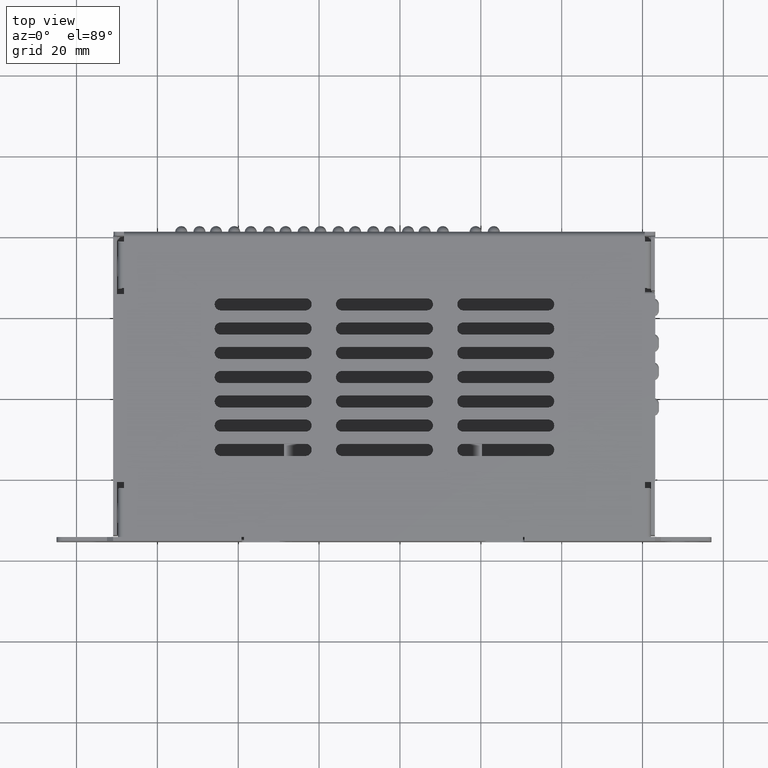
[diagram: clean part render]
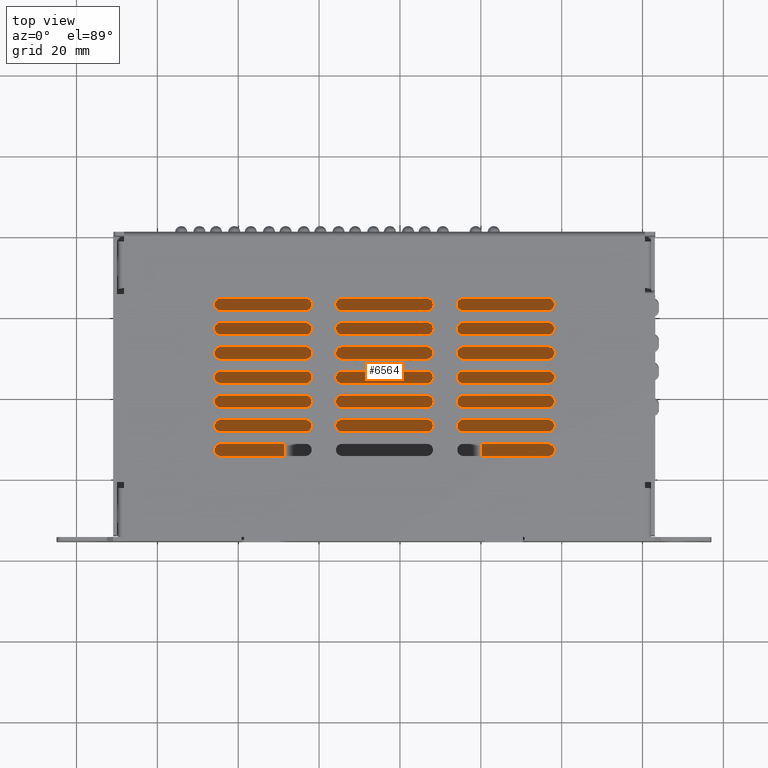
[diagram: same view with one face highlighted and labeled with its STEP entity id]
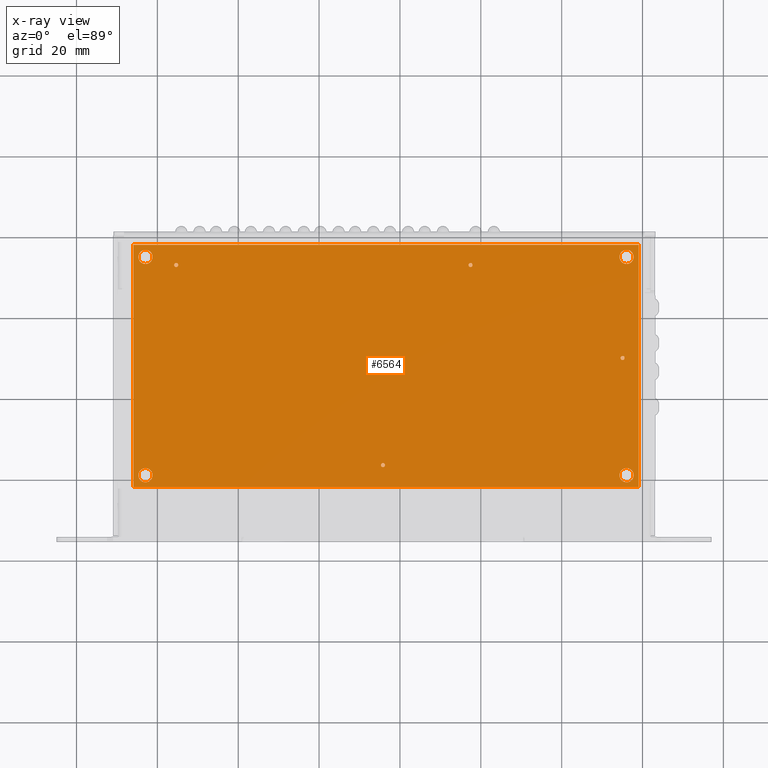
[diagram: x-ray of the same camera — body ghosted, the highlighted face saturated]
A machine part, top view. The second image highlights one B-rep face of the part: STEP entity #6564.
The next image is the same camera in x-ray: the body ghosted, the highlighted face saturated — about 0% of this face is hidden behind the body in this view.
In plain terms, the highlighted planar face has unit normal (0, 0, -1).
Its self-contained STEP definition (entity closure, byte-faithful):
#11 = VERTEX_POINT ( 'NONE', #15384 ) ;
#79 = VERTEX_POINT ( 'NONE', #15490 ) ;
#155 = EDGE_CURVE ( 'NONE', #11, #79, #15627, .T. ) ;
#6383 = EDGE_CURVE ( 'NONE', #6402, #6385, #16815, .T. ) ;
#6385 = VERTEX_POINT ( 'NONE', #16818 ) ;
#6390 = VERTEX_POINT ( 'NONE', #16852 ) ;
#6392 = VERTEX_POINT ( 'NONE', #16867 ) ;
#6393 = VERTEX_POINT ( 'NONE', #16850 ) ;
#6395 = VERTEX_POINT ( 'NONE', #16858 ) ;
#6402 = VERTEX_POINT ( 'NONE', #16845 ) ;
#6405 = EDGE_CURVE ( 'NONE', #6392, #6390, #16886, .T. ) ;
#6409 = VERTEX_POINT ( 'NONE', #16878 ) ;
#6422 = VERTEX_POINT ( 'NONE', #16922 ) ;
#6427 = VERTEX_POINT ( 'NONE', #16910 ) ;
#6433 = EDGE_CURVE ( 'NONE', #6435, #6395, #16949, .T. ) ;
#6435 = VERTEX_POINT ( 'NONE', #16943 ) ;
#6437 = EDGE_CURVE ( 'NONE', #6443, #6562, #16903, .T. ) ;
#6443 = VERTEX_POINT ( 'NONE', #16696 ) ;
#6445 = VERTEX_POINT ( 'NONE', #16247 ) ;
#6452 = VERTEX_POINT ( 'NONE', #16972 ) ;
#6461 = EDGE_CURVE ( 'NONE', #6427, #6393, #16962, .T. ) ;
#6464 = EDGE_CURVE ( 'NONE', #6385, #6402, #16953, .T. ) ;
#6465 = EDGE_LOOP ( 'NONE', ( #6473, #6515 ) ) ;
#6467 = EDGE_CURVE ( 'NONE', #6562, #6443, #16998, .T. ) ;
#6468 = ORIENTED_EDGE ( 'NONE', *, *, #6464, .F. ) ;
#6469 = EDGE_LOOP ( 'NONE', ( #6475, #6474, #6478, #6470 ) ) ;
#6470 = ORIENTED_EDGE ( 'NONE', *, *, #6531, .T. ) ;
#6472 = VERTEX_POINT ( 'NONE', #16986 ) ;
#6473 = ORIENTED_EDGE ( 'NONE', *, *, #6467, .F. ) ;
#6474 = ORIENTED_EDGE ( 'NONE', *, *, #6598, .T. ) ;
#6475 = ORIENTED_EDGE ( 'NONE', *, *, #6528, .T. ) ;
#6478 = ORIENTED_EDGE ( 'NONE', *, *, #6554, .T. ) ;
#6493 = EDGE_CURVE ( 'NONE', #6445, #6422, #17010, .T. ) ;
#6497 = EDGE_CURVE ( 'NONE', #6409, #6452, #17070, .T. ) ;
#6498 = ORIENTED_EDGE ( 'NONE', *, *, #6502, .F. ) ;
#6499 = ORIENTED_EDGE ( 'NONE', *, *, #155, .F. ) ;
#6500 = ORIENTED_EDGE ( 'NONE', *, *, #6558, .F. ) ;
#6501 = ORIENTED_EDGE ( 'NONE', *, *, #6510, .F. ) ;
#6502 = EDGE_CURVE ( 'NONE', #6395, #6435, #17051, .T. ) ;
#6504 = EDGE_LOOP ( 'NONE', ( #6541, #6538 ) ) ;
#6505 = EDGE_LOOP ( 'NONE', ( #6501, #6537 ) ) ;
#6506 = ORIENTED_EDGE ( 'NONE', *, *, #6461, .F. ) ;
#6507 = ORIENTED_EDGE ( 'NONE', *, *, #6433, .F. ) ;
#6509 = EDGE_LOOP ( 'NONE', ( #6500, #6499 ) ) ;
#6510 = EDGE_CURVE ( 'NONE', #6422, #6445, #17045, .T. ) ;
#6512 = ORIENTED_EDGE ( 'NONE', *, *, #6405, .F. ) ;
#6513 = ORIENTED_EDGE ( 'NONE', *, *, #6540, .F. ) ;
#6514 = EDGE_LOOP ( 'NONE', ( #6468, #6543 ) ) ;
#6515 = ORIENTED_EDGE ( 'NONE', *, *, #6437, .F. ) ;
#6516 = EDGE_LOOP ( 'NONE', ( #6542, #6512 ) ) ;
#6528 = EDGE_CURVE ( 'NONE', #6472, #6529, #17102, .T. ) ;
#6529 = VERTEX_POINT ( 'NONE', #17081 ) ;
#6531 = EDGE_CURVE ( 'NONE', #6555, #6472, #17090, .T. ) ;
#6532 = EDGE_LOOP ( 'NONE', ( #6498, #6507 ) ) ;
#6537 = ORIENTED_EDGE ( 'NONE', *, *, #6493, .F. ) ;
#6538 = ORIENTED_EDGE ( 'NONE', *, *, #6497, .F. ) ;
#6539 = EDGE_CURVE ( 'NONE', #6452, #6409, #17075, .T. ) ;
#6540 = EDGE_CURVE ( 'NONE', #6393, #6427, #17125, .T. ) ;
#6541 = ORIENTED_EDGE ( 'NONE', *, *, #6539, .F. ) ;
#6542 = ORIENTED_EDGE ( 'NONE', *, *, #6545, .F. ) ;
#6543 = ORIENTED_EDGE ( 'NONE', *, *, #6383, .F. ) ;
#6544 = EDGE_LOOP ( 'NONE', ( #6513, #6506 ) ) ;
#6545 = EDGE_CURVE ( 'NONE', #6390, #6392, #17116, .T. ) ;
#6554 = EDGE_CURVE ( 'NONE', #6595, #6555, #17106, .T. ) ;
#6555 = VERTEX_POINT ( 'NONE', #17156 ) ;
#6558 = EDGE_CURVE ( 'NONE', #79, #11, #17105, .T. ) ;
#6562 = VERTEX_POINT ( 'NONE', #17155 ) ;
#6564 = ADVANCED_FACE ( 'NONE', ( #17193, #17138, #17137, #17161, #17131, #17192, #17191, #17190, #17135 ), #17130, .F. ) ;
#6595 = VERTEX_POINT ( 'NONE', #17198 ) ;
#6598 = EDGE_CURVE ( 'NONE', #6529, #6595, #17217, .T. ) ;
#15384 = CARTESIAN_POINT ( 'NONE',  ( 82.90000000000000600, 55.00000000000000000, 1.600000000000000100 ) ) ;
#15490 = CARTESIAN_POINT ( 'NONE',  ( 83.90000000000000600, 55.00000000000000000, 1.600000000000000100 ) ) ;
#15624 = DIRECTION ( 'NONE',  ( 1.000000000000000000, 0.0000000000000000000, 0.0000000000000000000 ) ) ;
#15625 = DIRECTION ( 'NONE',  ( 0.0000000000000000000, 0.0000000000000000000, 1.000000000000000000 ) ) ;
#15626 = CARTESIAN_POINT ( 'NONE',  ( 83.40000000000000600, 55.00000000000000000, 1.600000000000000100 ) ) ;
#15627 = CIRCLE ( 'NONE', #15639, 0.5000000000000004400 ) ;
#15639 = AXIS2_PLACEMENT_3D ( 'NONE', #15626, #15625, #15624 ) ;
#16247 = CARTESIAN_POINT ( 'NONE',  ( 61.25000000000000000, 5.500000000000000000, 1.600000000000000100 ) ) ;
#16696 = CARTESIAN_POINT ( 'NONE',  ( 1.249999999999999600, 56.99999999999999300, 1.600000000000000100 ) ) ;
#16781 = AXIS2_PLACEMENT_3D ( 'NONE', #16814, #16813, #16812 ) ;
#16812 = DIRECTION ( 'NONE',  ( 1.000000000000000000, 0.0000000000000000000, 0.0000000000000000000 ) ) ;
#16813 = DIRECTION ( 'NONE',  ( 0.0000000000000000000, 0.0000000000000000000, 1.000000000000000000 ) ) ;
#16814 = CARTESIAN_POINT ( 'NONE',  ( 122.0000000000000000, 56.99999999999999300, 1.600000000000000100 ) ) ;
#16815 = CIRCLE ( 'NONE', #16781, 1.750000000000001600 ) ;
#16818 = CARTESIAN_POINT ( 'NONE',  ( 123.7500000000000000, 56.99999999999999300, 1.600000000000000100 ) ) ;
#16845 = CARTESIAN_POINT ( 'NONE',  ( 120.2500000000000000, 56.99999999999999300, 1.600000000000000100 ) ) ;
#16850 = CARTESIAN_POINT ( 'NONE',  ( 4.750000000000000000, 3.000000000000000000, 1.600000000000000100 ) ) ;
#16852 = CARTESIAN_POINT ( 'NONE',  ( 123.7500000000000000, 3.000000000000000000, 1.600000000000000100 ) ) ;
#16858 = CARTESIAN_POINT ( 'NONE',  ( 11.09999999999999800, 55.00000000000000000, 1.600000000000000100 ) ) ;
#16867 = CARTESIAN_POINT ( 'NONE',  ( 120.2500000000000000, 3.000000000000000000, 1.600000000000000100 ) ) ;
#16878 = CARTESIAN_POINT ( 'NONE',  ( 120.5000000000000100, 32.00000000000000000, 1.600000000000000100 ) ) ;
#16882 = DIRECTION ( 'NONE',  ( 1.000000000000000000, 0.0000000000000000000, 0.0000000000000000000 ) ) ;
#16883 = DIRECTION ( 'NONE',  ( 0.0000000000000000000, 0.0000000000000000000, 1.000000000000000000 ) ) ;
#16884 = CARTESIAN_POINT ( 'NONE',  ( 122.0000000000000000, 3.000000000000000000, 1.600000000000000100 ) ) ;
#16885 = AXIS2_PLACEMENT_3D ( 'NONE', #16884, #16883, #16882 ) ;
#16886 = CIRCLE ( 'NONE', #16885, 1.750000000000001600 ) ;
#16903 = CIRCLE ( 'NONE', #16931, 1.750000000000000700 ) ;
#16904 = AXIS2_PLACEMENT_3D ( 'NONE', #16948, #16947, #16946 ) ;
#16910 = CARTESIAN_POINT ( 'NONE',  ( 1.250000000000000000, 3.000000000000000000, 1.600000000000000100 ) ) ;
#16922 = CARTESIAN_POINT ( 'NONE',  ( 62.25000000000000000, 5.500000000000000000, 1.600000000000000100 ) ) ;
#16928 = DIRECTION ( 'NONE',  ( 1.000000000000000000, 0.0000000000000000000, 0.0000000000000000000 ) ) ;
#16929 = DIRECTION ( 'NONE',  ( 0.0000000000000000000, 0.0000000000000000000, 1.000000000000000000 ) ) ;
#16930 = CARTESIAN_POINT ( 'NONE',  ( 3.000000000000000000, 56.99999999999999300, 1.600000000000000100 ) ) ;
#16931 = AXIS2_PLACEMENT_3D ( 'NONE', #16930, #16929, #16928 ) ;
#16943 = CARTESIAN_POINT ( 'NONE',  ( 10.09999999999999800, 55.00000000000000000, 1.600000000000000100 ) ) ;
#16946 = DIRECTION ( 'NONE',  ( 1.000000000000000000, 0.0000000000000000000, 0.0000000000000000000 ) ) ;
#16947 = DIRECTION ( 'NONE',  ( 0.0000000000000000000, 0.0000000000000000000, 1.000000000000000000 ) ) ;
#16948 = CARTESIAN_POINT ( 'NONE',  ( 10.59999999999999800, 55.00000000000000000, 1.600000000000000100 ) ) ;
#16949 = CIRCLE ( 'NONE', #16904, 0.5000000000000004400 ) ;
#16952 = CARTESIAN_POINT ( 'NONE',  ( 122.0000000000000000, 56.99999999999999300, 1.600000000000000100 ) ) ;
#16953 = CIRCLE ( 'NONE', #16963, 1.750000000000001600 ) ;
#16956 = AXIS2_PLACEMENT_3D ( 'NONE', #17005, #17004, #17003 ) ;
#16962 = CIRCLE ( 'NONE', #16956, 1.749999999999999800 ) ;
#16963 = AXIS2_PLACEMENT_3D ( 'NONE', #16952, #16997, #16996 ) ;
#16972 = CARTESIAN_POINT ( 'NONE',  ( 121.5000000000000100, 32.00000000000000000, 1.600000000000000100 ) ) ;
#16986 = CARTESIAN_POINT ( 'NONE',  ( 0.0000000000000000000, 60.00000000000000000, 1.600000000000000100 ) ) ;
#16988 = DIRECTION ( 'NONE',  ( 1.000000000000000000, 0.0000000000000000000, 0.0000000000000000000 ) ) ;
#16989 = DIRECTION ( 'NONE',  ( 0.0000000000000000000, 0.0000000000000000000, 1.000000000000000000 ) ) ;
#16990 = CARTESIAN_POINT ( 'NONE',  ( 3.000000000000000000, 56.99999999999999300, 1.600000000000000100 ) ) ;
#16991 = AXIS2_PLACEMENT_3D ( 'NONE', #16990, #16989, #16988 ) ;
#16996 = DIRECTION ( 'NONE',  ( 1.000000000000000000, 0.0000000000000000000, 0.0000000000000000000 ) ) ;
#16997 = DIRECTION ( 'NONE',  ( 0.0000000000000000000, 0.0000000000000000000, 1.000000000000000000 ) ) ;
#16998 = CIRCLE ( 'NONE', #16991, 1.750000000000000700 ) ;
#17003 = DIRECTION ( 'NONE',  ( 1.000000000000000000, 0.0000000000000000000, 0.0000000000000000000 ) ) ;
#17004 = DIRECTION ( 'NONE',  ( 0.0000000000000000000, 0.0000000000000000000, 1.000000000000000000 ) ) ;
#17005 = CARTESIAN_POINT ( 'NONE',  ( 3.000000000000000000, 3.000000000000000000, 1.600000000000000100 ) ) ;
#17010 = CIRCLE ( 'NONE', #17022, 0.5000000000000004400 ) ;
#17022 = AXIS2_PLACEMENT_3D ( 'NONE', #17068, #17067, #17066 ) ;
#17036 = AXIS2_PLACEMENT_3D ( 'NONE', #17055, #17054, #17053 ) ;
#17040 = DIRECTION ( 'NONE',  ( 0.0000000000000000000, 0.0000000000000000000, 1.000000000000000000 ) ) ;
#17041 = CARTESIAN_POINT ( 'NONE',  ( 61.75000000000000000, 5.500000000000000000, 1.600000000000000100 ) ) ;
#17042 = AXIS2_PLACEMENT_3D ( 'NONE', #17041, #17040, #17103 ) ;
#17045 = CIRCLE ( 'NONE', #17042, 0.5000000000000004400 ) ;
#17047 = DIRECTION ( 'NONE',  ( 1.000000000000000000, 0.0000000000000000000, 0.0000000000000000000 ) ) ;
#17048 = DIRECTION ( 'NONE',  ( 0.0000000000000000000, 0.0000000000000000000, 1.000000000000000000 ) ) ;
#17049 = CARTESIAN_POINT ( 'NONE',  ( 10.59999999999999800, 55.00000000000000000, 1.600000000000000100 ) ) ;
#17050 = AXIS2_PLACEMENT_3D ( 'NONE', #17049, #17048, #17047 ) ;
#17051 = CIRCLE ( 'NONE', #17050, 0.5000000000000004400 ) ;
#17053 = DIRECTION ( 'NONE',  ( 1.000000000000000000, 0.0000000000000000000, 0.0000000000000000000 ) ) ;
#17054 = DIRECTION ( 'NONE',  ( 0.0000000000000000000, 0.0000000000000000000, 1.000000000000000000 ) ) ;
#17055 = CARTESIAN_POINT ( 'NONE',  ( 121.0000000000000100, 32.00000000000000000, 1.600000000000000100 ) ) ;
#17066 = DIRECTION ( 'NONE',  ( 1.000000000000000000, 0.0000000000000000000, 0.0000000000000000000 ) ) ;
#17067 = DIRECTION ( 'NONE',  ( 0.0000000000000000000, 0.0000000000000000000, 1.000000000000000000 ) ) ;
#17068 = CARTESIAN_POINT ( 'NONE',  ( 61.75000000000000000, 5.500000000000000000, 1.600000000000000100 ) ) ;
#17070 = CIRCLE ( 'NONE', #17036, 0.5000000000000004400 ) ;
#17071 = CARTESIAN_POINT ( 'NONE',  ( 3.000000000000000000, 3.000000000000000000, 1.600000000000000100 ) ) ;
#17072 = DIRECTION ( 'NONE',  ( -1.000000000000000000, -0.0000000000000000000, -0.0000000000000000000 ) ) ;
#17073 = VECTOR ( 'NONE', #17072, 1000.000000000000000 ) ;
#17074 = CARTESIAN_POINT ( 'NONE',  ( 0.0000000000000000000, 60.00000000000000000, 1.600000000000000100 ) ) ;
#17075 = CIRCLE ( 'NONE', #17123, 0.5000000000000004400 ) ;
#17077 = DIRECTION ( 'NONE',  ( -0.0000000000000000000, -1.000000000000000000, -0.0000000000000000000 ) ) ;
#17078 = VECTOR ( 'NONE', #17077, 1000.000000000000000 ) ;
#17079 = CARTESIAN_POINT ( 'NONE',  ( 0.0000000000000000000, 0.0000000000000000000, 1.600000000000000100 ) ) ;
#17081 = CARTESIAN_POINT ( 'NONE',  ( 0.0000000000000000000, 0.0000000000000000000, 1.600000000000000100 ) ) ;
#17090 = LINE ( 'NONE', #17074, #17073 ) ;
#17102 = LINE ( 'NONE', #17079, #17078 ) ;
#17103 = DIRECTION ( 'NONE',  ( 1.000000000000000000, 0.0000000000000000000, 0.0000000000000000000 ) ) ;
#17105 = CIRCLE ( 'NONE', #17151, 0.5000000000000004400 ) ;
#17106 = LINE ( 'NONE', #17154, #17153 ) ;
#17112 = DIRECTION ( 'NONE',  ( 1.000000000000000000, 0.0000000000000000000, 0.0000000000000000000 ) ) ;
#17113 = DIRECTION ( 'NONE',  ( 0.0000000000000000000, 0.0000000000000000000, 1.000000000000000000 ) ) ;
#17114 = CARTESIAN_POINT ( 'NONE',  ( 122.0000000000000000, 3.000000000000000000, 1.600000000000000100 ) ) ;
#17116 = CIRCLE ( 'NONE', #17124, 1.750000000000001600 ) ;
#17118 = DIRECTION ( 'NONE',  ( 1.000000000000000000, 0.0000000000000000000, 0.0000000000000000000 ) ) ;
#17119 = DIRECTION ( 'NONE',  ( 0.0000000000000000000, 0.0000000000000000000, 1.000000000000000000 ) ) ;
#17120 = DIRECTION ( 'NONE',  ( 1.000000000000000000, 0.0000000000000000000, 0.0000000000000000000 ) ) ;
#17121 = DIRECTION ( 'NONE',  ( 0.0000000000000000000, 0.0000000000000000000, 1.000000000000000000 ) ) ;
#17122 = CARTESIAN_POINT ( 'NONE',  ( 121.0000000000000100, 32.00000000000000000, 1.600000000000000100 ) ) ;
#17123 = AXIS2_PLACEMENT_3D ( 'NONE', #17122, #17121, #17120 ) ;
#17124 = AXIS2_PLACEMENT_3D ( 'NONE', #17114, #17113, #17112 ) ;
#17125 = CIRCLE ( 'NONE', #17127, 1.749999999999999800 ) ;
#17127 = AXIS2_PLACEMENT_3D ( 'NONE', #17071, #17119, #17118 ) ;
#17130 = PLANE ( 'NONE',  #17132 ) ;
#17131 = FACE_BOUND ( 'NONE', #6544, .T. ) ;
#17132 = AXIS2_PLACEMENT_3D ( 'NONE', #17136, #17185, #17184 ) ;
#17135 = FACE_OUTER_BOUND ( 'NONE', #6469, .T. ) ;
#17136 = CARTESIAN_POINT ( 'NONE',  ( 0.0000000000000000000, 0.0000000000000000000, 1.600000000000000100 ) ) ;
#17137 = FACE_BOUND ( 'NONE', #6505, .T. ) ;
#17138 = FACE_BOUND ( 'NONE', #6532, .T. ) ;
#17139 = DIRECTION ( 'NONE',  ( 1.000000000000000000, 0.0000000000000000000, 0.0000000000000000000 ) ) ;
#17140 = DIRECTION ( 'NONE',  ( 0.0000000000000000000, 0.0000000000000000000, 1.000000000000000000 ) ) ;
#17141 = CARTESIAN_POINT ( 'NONE',  ( 83.40000000000000600, 55.00000000000000000, 1.600000000000000100 ) ) ;
#17151 = AXIS2_PLACEMENT_3D ( 'NONE', #17141, #17140, #17139 ) ;
#17152 = DIRECTION ( 'NONE',  ( 0.0000000000000000000, 1.000000000000000000, 0.0000000000000000000 ) ) ;
#17153 = VECTOR ( 'NONE', #17152, 1000.000000000000000 ) ;
#17154 = CARTESIAN_POINT ( 'NONE',  ( 125.0000000000000000, 0.0000000000000000000, 1.600000000000000100 ) ) ;
#17155 = CARTESIAN_POINT ( 'NONE',  ( 4.750000000000000900, 56.99999999999999300, 1.600000000000000100 ) ) ;
#17156 = CARTESIAN_POINT ( 'NONE',  ( 125.0000000000000000, 60.00000000000000000, 1.600000000000000100 ) ) ;
#17161 = FACE_BOUND ( 'NONE', #6504, .T. ) ;
#17184 = DIRECTION ( 'NONE',  ( -1.000000000000000000, 0.0000000000000000000, -0.0000000000000000000 ) ) ;
#17185 = DIRECTION ( 'NONE',  ( 0.0000000000000000000, 0.0000000000000000000, -1.000000000000000000 ) ) ;
#17190 = FACE_BOUND ( 'NONE', #6465, .T. ) ;
#17191 = FACE_BOUND ( 'NONE', #6514, .T. ) ;
#17192 = FACE_BOUND ( 'NONE', #6516, .T. ) ;
#17193 = FACE_BOUND ( 'NONE', #6509, .T. ) ;
#17198 = CARTESIAN_POINT ( 'NONE',  ( 125.0000000000000000, 0.0000000000000000000, 1.600000000000000100 ) ) ;
#17217 = LINE ( 'NONE', #17242, #17241 ) ;
#17240 = DIRECTION ( 'NONE',  ( 1.000000000000000000, 0.0000000000000000000, 0.0000000000000000000 ) ) ;
#17241 = VECTOR ( 'NONE', #17240, 1000.000000000000000 ) ;
#17242 = CARTESIAN_POINT ( 'NONE',  ( 0.0000000000000000000, 0.0000000000000000000, 1.600000000000000100 ) ) ;